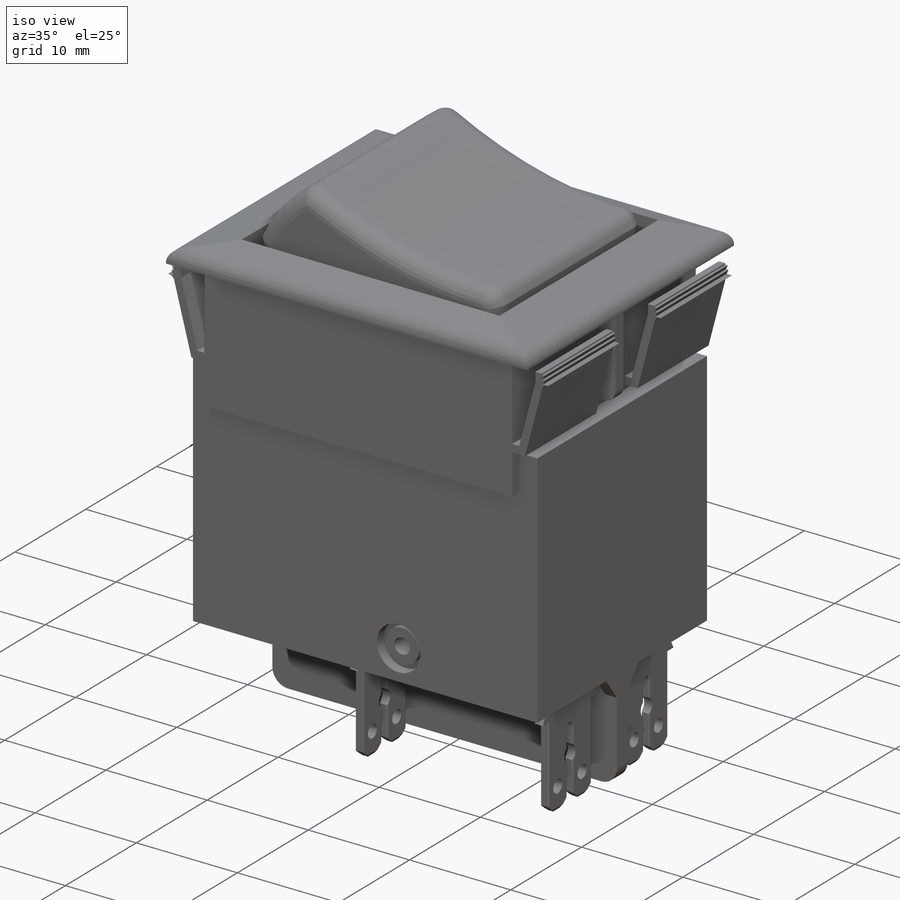
[diagram: iso view]
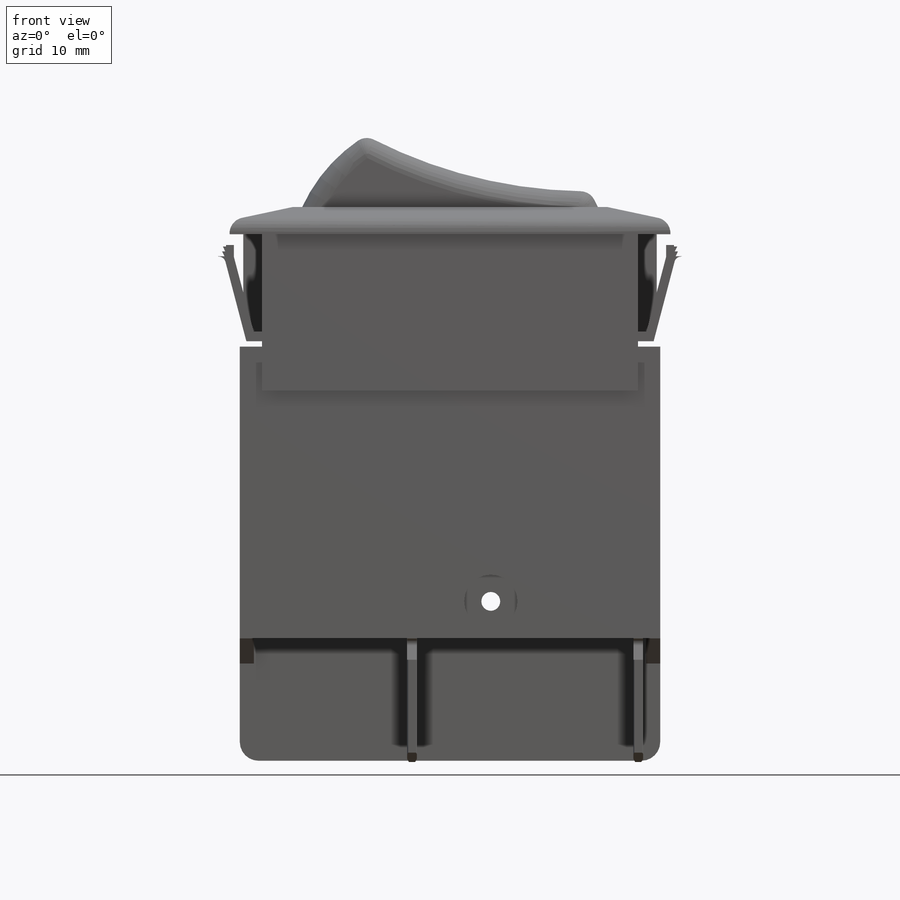
[diagram: front view]
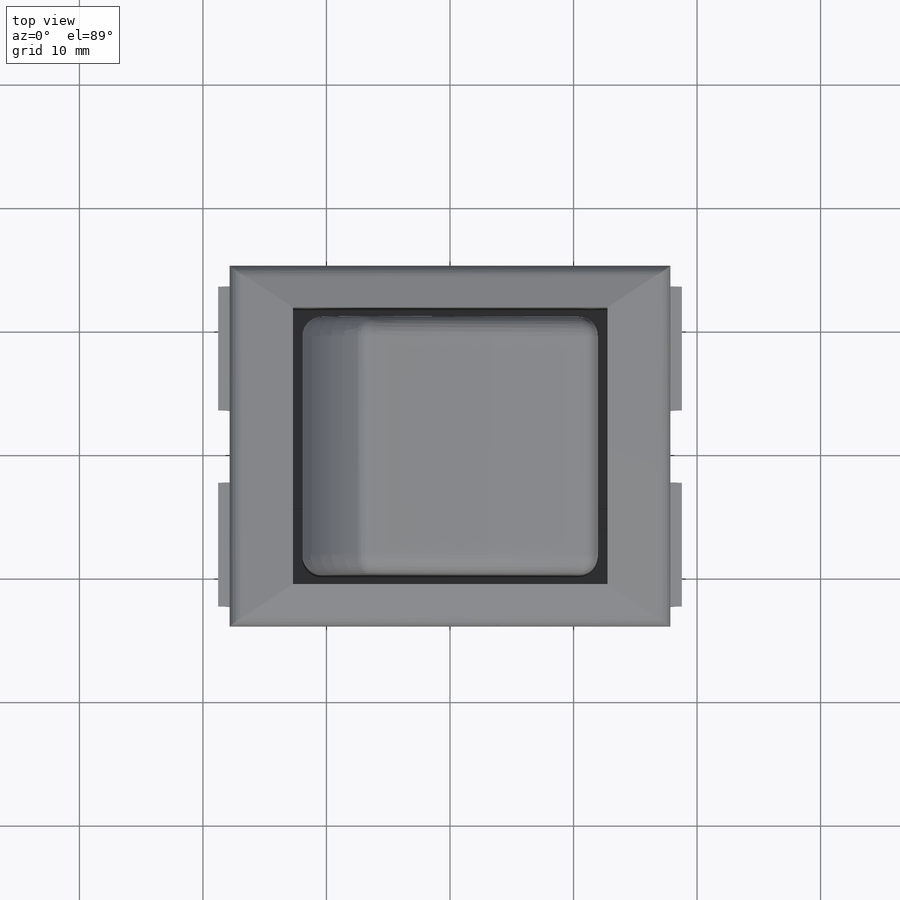
[diagram: top view]
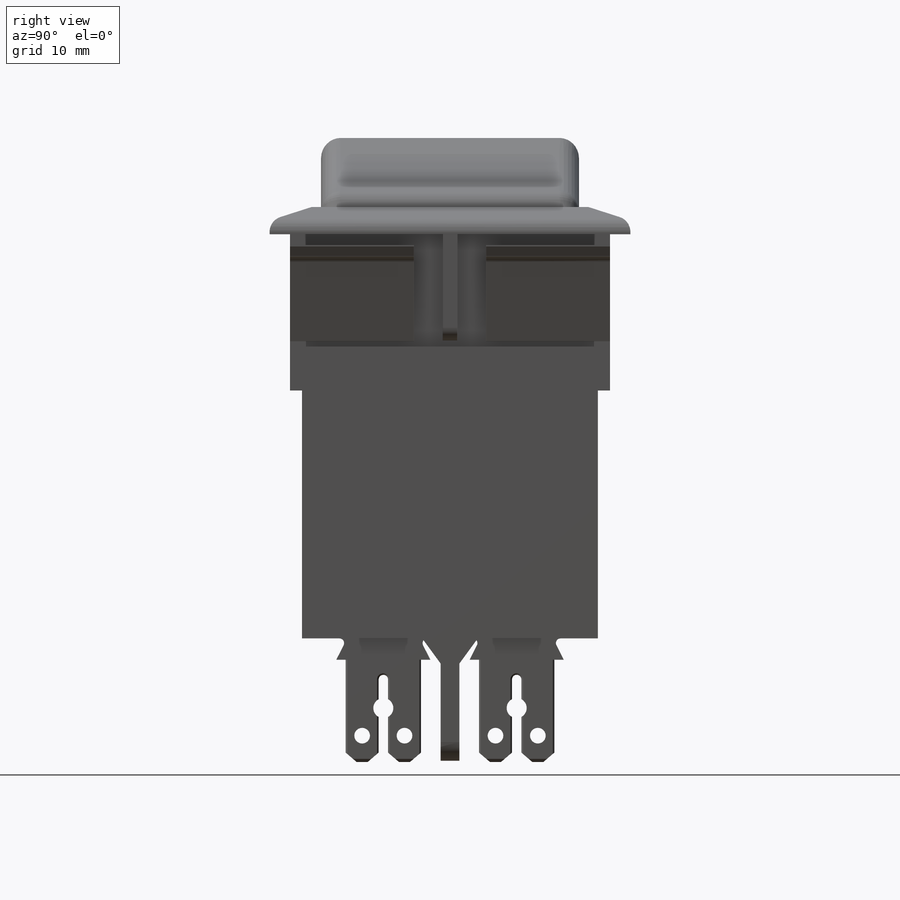
[diagram: right view]
SOLIDWORKS PART (.sldprt)
format: sldprt  version: not decoded by parser v0  size: 2,700,288 bytes
history: native  units: mm
features: sketch x22, cut_extrude x12, extrude x10, chamfer x4, mirror x3, fillet x2, material x1, pattern_linear x1 (+11 scaffold rows collapsed)
feature tree (66):
  scaffold x11  (default folders/planes/origin — collapsed)
  material  "Material <not specified>"
  sketch  "Sketch1"  dims[c1.D1=25.908mm c1.D2=33.02mm c1.D3=29.21mm c1.D4=34.925mm c1.D5=19.4818mm c1.D6=1.1176mm c1.D7=20.8788mm c1.D8=5.588mm c2.D5=23.9522mm c2.D1=25.908mm c2.D2=2.2098mm c2.D6=20.066mm c2.D9=9.906mm c2.D10=1.524mm c2.D11=~10.022545mm c2.D12=9.906mm c2.D13=9.906mm c3.D12=9.906mm c3.D13=9.906mm c4.D12=9.906mm c4.D9=9.906mm c4.D11=~24.305823mm c5.D12=20.066mm c5.D13=20.066mm c6.D12=20.066mm c6.D6=20.066mm c6.D11=1.1176mm c6.D2=2.2098mm c6.D4=34.925mm c6.D8=5.588mm c7.D12=0.762mm]
  extrude  "Boss-Extrude1"  Depth=35.687mm
  sketch  "Sketch2"  dims[c1.D5=6.35mm c1.D8=1.27mm c1.D11=1.524mm c1.D14=1.524mm c1.D1=40.894mm c1.D2=35.1536mm c1.D3=3.175mm c1.D4=12.7mm c1.D6=~2.38125mm c1.D7=9.525mm c2.D1=9.0932mm c2.D2=30.4292mm c2.D3=25.4508mm c2.D4=0.762mm c2.D5=1.27mm c2.D6=0.762mm c3.D4=0.762mm c3.D7=18.542mm c3.D9=9.525mm c3.D10=13.716mm c3.D12=2.2352mm c3.D13=38.1mm c3.D15=5.08mm c3.D16=34.036mm c4.D10=13.716mm]
  cut_extrude  "Cut-Extrude1"  Depth=38.1mm
  sketch  "Sketch3"  dims[D1=1.397mm D2=1.397mm]
  cut_extrude  "Cut-Extrude2"  Depth=12.7mm
  sketch  "Sketch4"  dims[D1=12.7mm]
  cut_extrude  "Cut-Extrude3"  Depth=16.51mm
  fillet  "Fillet1"  Radius=1.5875mm
  sketch  "Sketch5"  dims[c1.D1=0.7874mm c1.D2=7.62mm c1.D3=3.175mm c1.D4=15.494mm c1.D5=2.9972mm c2.D4=1.778mm c2.D5=20.0914mm c3.D4=1.778mm c3.D5=20.0914mm]
  extrude  "Boss-Extrude2"  Depth=10.0076mm
  sketch  "Sketch6"  dims[c1.D6=1.27mm c1.D8=1.6256mm c1.D10=1.6256mm c1.D14=0.381mm c1.D1=4.699mm c1.D2=2.032mm c1.D3=0.762mm c1.D4=0.762mm c1.D5=0.762mm c1.D7=2.1336mm c1.D9=4.3688mm c2.D10=~4.391388mm c2.D11=0.381mm c2.D12=0.762mm c3.D11=0.762mm c3.D12=0.762mm c4.D11=0.762mm c4.D12=0.762mm c5.D11=0.762mm c5.D12=~49.398705deg c6.D12=0.762mm c6.D11=0.762mm c7.D12=0.762mm c7.D11=0.762mm c8.D12=0.762mm c8.D3=0.762mm c8.D11=0.635mm c9.D12=12.7mm c9.D13=25.4mm c9.D2=1.7272mm c9.D11=0.254mm c9.D15=2.9464mm c9.D16=2.286mm]
  cut_extrude  "Cut-Extrude4"  [1 undecoded]
  sketch  "Sketch13"  dims[D1=1.27mm D2=2.1336mm]
  cut_extrude  "Cut-Extrude9"  [1 undecoded]
  chamfer  "Chamfer1"  Distance=0.127mm Angle=30deg
  chamfer  "Chamfer2"  Distance=0.254mm Angle=30deg
  sketch  "Sketch7"  dims[D1=17.78mm D2=1.778mm D3=3.81mm]
  cut_extrude  "Cut-Extrude5"  Depth=9.8044mm
  sketch  "Sketch8"  dims[D1=9.7536mm D2=9.2964mm D3=9.525mm]
  extrude  "Boss-Extrude3"  Depth=12.7mm
  sketch  "Sketch9"  dims[c1.D10=0.5588mm c1.D1=1.524mm c1.D2=1.016mm c1.D3=3.429mm c1.D4=10.287mm c1.D5=5.8166mm c1.D6=3.048mm c1.D7=~3.377005mm c2.D7=~0.511963deg c3.D7=0.762mm c3.D8=6.096mm c3.D9=2.0828mm c3.D10=0.508mm c3.D11=0.6096mm c3.D12=0.6858mm c3.D2=0.762mm c3.D3=0.4318mm c3.D4=2.286mm c3.D5=1.27mm c3.D1=0.8636mm c3.D6=0.635mm c4.D9=1.27mm c4.D11=0.508mm c4.D12=0.0254mm c4.D13=0.127mm c4.D14=0.254mm c4.D15=0.254mm c5.D13=0.0mm]
  extrude  "Boss-Extrude4"  Depth=10.033mm
  sketch  "Sketch16"  dims[D1=4.4958mm D2=2.032mm]
  extrude  "Boss-Extrude6"  Depth=1.143mm
  sketch  "Sketch18"  dims[D3=1.016mm D1=1.524mm D2=0.508mm]
  extrude  "Boss-Extrude7"  Depth=1.1684mm
  sketch  "Sketch19"  dims[D1=4.318mm]
  cut_extrude  "Cut-Extrude10"  Depth=1.016mm
  sketch  "Sketch20"  dims[D1=3.302mm]
  extrude  "Boss-Extrude8"  Depth=0.508mm
  sketch  "Sketch10"  dims[D1=0.9652mm D2=0.9652mm D3=2.2606mm D4=7.62mm]
  mirror  "Mirror1"
  mirror  "Mirror2"
  cut_extrude  "Cut-Extrude6"  [1 undecoded]
  sketch  "Sketch11"  dims[D2=2.921mm D1=5.7912mm]
  cut_extrude  "Cut-Extrude7"  Depth=6.731mm
  sketch  "Sketch12"  dims[D1=2.2352mm D2=4.0386mm]
  cut_extrude  "Cut-Extrude8"  Depth=3.2893mm
  sketch  "Sketch14"  dims[D3=1.905mm D1=2.159mm D2=2.159mm]
  extrude  "Boss-Extrude5"  Depth=2.2606mm
  chamfer  "Chamfer3"  Distance=0.762mm Angle=65deg
  chamfer  "Chamfer4"  Distance=1.660093mm Angle=25deg
  sketch  "Sketch21"
  cut_extrude  "Cut-Extrude11"  Depth=0.9779mm
  mirror  "Mirror3"
  fillet  "Fillet2"  Radius=1.27mm
  sketch  "Sketch22"  dims[D1=7.0mm]
  extrude  "Boss-Extrude9"  Depth=2.6mm
  sketch  "Sketch23"  dims[c1.D1=~0.689927mm c2.D1=45.0deg c2.D2=8.89mm c2.D3=2.032mm]
  cut_extrude  "Cut-Extrude15"  Depth=1.94mm
  sketch  "Sketch24"  dims[D1=3.5mm]
  extrude  "Boss-Extrude10"  Depth=5mm
  pattern_linear  "LPattern1"  Count1=2 Count2=1 Spacing1=10.795mm Spacing2=2.54mm
decode coverage: 47 of 54 modeling features carry decoded parameters
note: ~ marks probable driven/reference dimensions
note: 3 parameter values undecoded
summary: no parameter record found for 3 features
note: suppression state not decoded; provenance and decode notes live in map.json
